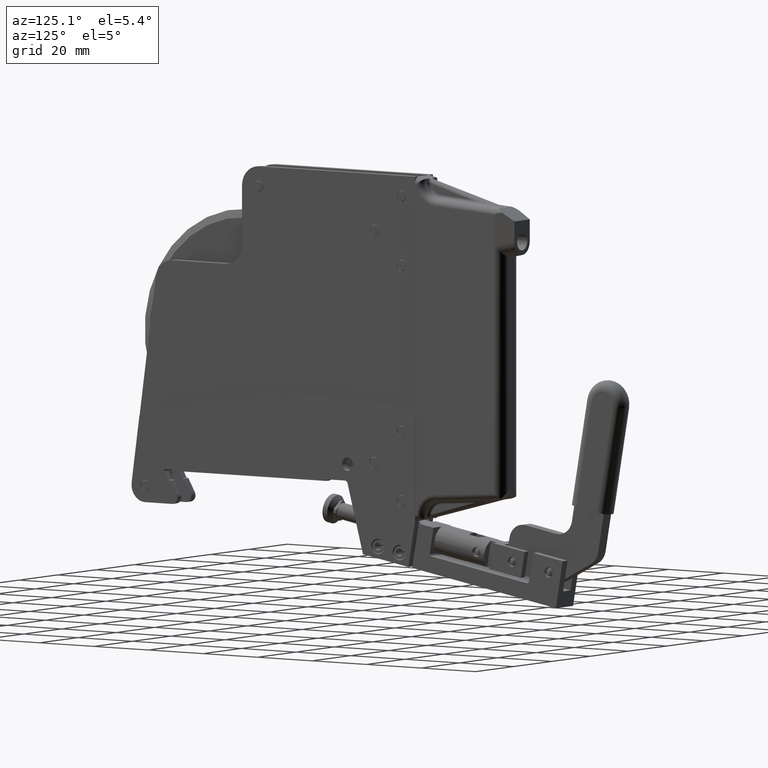
[diagram: clean part render]
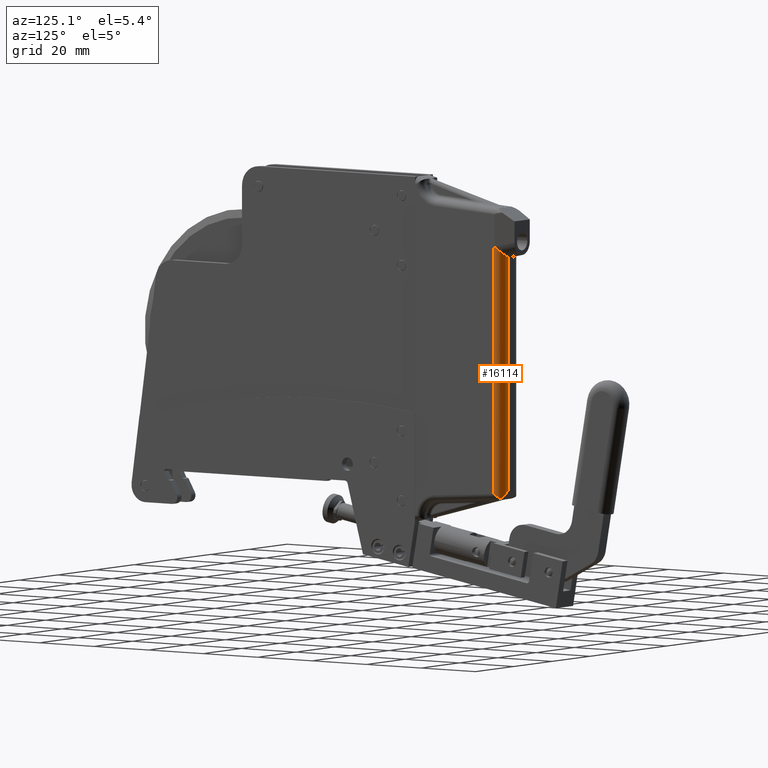
[diagram: same view with one face highlighted and labeled with its STEP entity id]
A machine part, auxiliary view. The second image highlights one B-rep face of the part: STEP entity #16114.
In plain terms, the highlighted cylindrical surface (edge-blend (fillet) strip) has radius 3 mm, axis along (0, 0, 1).
Its self-contained STEP definition (entity closure, byte-faithful):
#1889 = DIRECTION ( 'NONE',  ( 5.570303225098411801E-17, 1.225148454908620010E-16, 1.000000000000000000 ) ) ;
#2108 = CARTESIAN_POINT ( 'NONE',  ( 0.3701013619608116145, 2.420388976758461208, 1.272850159631258027 ) ) ;
#2231 = EDGE_CURVE ( 'NONE', #14597, #5334, #16804, .T. ) ;
#2302 = CARTESIAN_POINT ( 'NONE',  ( 0.2714393806282462407, 2.518246655274281931, 1.161888002753969085 ) ) ;
#3508 = VERTEX_POINT ( 'NONE', #29856 ) ;
#3959 = ORIENTED_EDGE ( 'NONE', *, *, #2231, .F. ) ;
#4880 = CARTESIAN_POINT ( 'NONE',  ( 0.3716535433070867755, 2.401185387117290571, -1.657239845452961102 ) ) ;
#5234 = VECTOR ( 'NONE', #17510, 39.37007874015748143 ) ;
#5334 = VERTEX_POINT ( 'NONE', #37471 ) ;
#5439 = CARTESIAN_POINT ( 'NONE',  ( 0.3678209431114168315, 2.431239934776605605, 1.263697560768792139 ) ) ;
#5889 = ORIENTED_EDGE ( 'NONE', *, *, #37145, .T. ) ;
#6402 = CARTESIAN_POINT ( 'NONE',  ( 0.2535433070866143779, 2.519295623337763246, -1.619041136939663561 ) ) ;
#7206 = VERTEX_POINT ( 'NONE', #30838 ) ;
#8216 = CARTESIAN_POINT ( 'NONE',  ( 0.3301889440454494062, 2.491384026079261904, 1.201225200173722252 ) ) ;
#8415 = CARTESIAN_POINT ( 'NONE',  ( 0.3505712549088514929, 2.470108574762409859, 1.225020368659028414 ) ) ;
#8523 = DIRECTION ( 'NONE',  ( 5.570303225098411801E-17, 1.225148454908620010E-16, 1.000000000000000000 ) ) ;
#10157 = CARTESIAN_POINT ( 'NONE',  ( 0.2535433070866144889, 2.519295623337763690, 1.155321704405330108 ) ) ;
#10215 = CARTESIAN_POINT ( 'NONE',  ( 0.3716535433070867755, 2.401185387117290571, -1.657239845452961102 ) ) ;
#11089 = FACE_OUTER_BOUND ( 'NONE', #36744, .T. ) ;
#11362 = CARTESIAN_POINT ( 'NONE',  ( 0.3686799268695289400, 2.427787242141226098, 1.266916617238273535 ) ) ;
#11398 = CARTESIAN_POINT ( 'NONE',  ( 0.3674331323723635245, 2.433171496643364407, -1.681077223645609076 ) ) ;
#11744 = CARTESIAN_POINT ( 'NONE',  ( 0.3711216599036045172, 2.412432854097110280, 1.274710118522544233 ) ) ;
#12388 = ORIENTED_EDGE ( 'NONE', *, *, #26643, .F. ) ;
#13936 = CARTESIAN_POINT ( 'NONE',  ( 0.3711222988017576219, 2.414105985418275591, -1.666911749336099424 ) ) ;
#14109 = CARTESIAN_POINT ( 'NONE',  ( 0.3109299921774595354, 2.504736657024238422, 1.184626628413938842 ) ) ;
#14324 = CARTESIAN_POINT ( 'NONE',  ( 0.3604054850315558944, 2.451954093334927975, -1.694743344692332565 ) ) ;
#14495 = CARTESIAN_POINT ( 'NONE',  ( 0.3357299238760466653, 2.486326963677681245, 1.207045974566942625 ) ) ;
#14597 = VERTEX_POINT ( 'NONE', #10215 ) ;
#14860 = CARTESIAN_POINT ( 'NONE',  ( 0.2898324438948471915, 2.519295623337763246, -1.655330273747896541 ) ) ;
#16114 = ADVANCED_FACE ( 'NONE', ( #11089 ), #35323, .T. ) ;
#16398 = AXIS2_PLACEMENT_3D ( 'NONE', #16928, #8523, #38450 ) ;
#16594 = LINE ( 'NONE', #28365, #5234 ) ;
#16715 = EDGE_CURVE ( 'NONE', #3508, #7206, #32693, .T. ) ;
#16804 = LINE ( 'NONE', #32464, #33653 ) ;
#16928 = CARTESIAN_POINT ( 'NONE',  ( 0.2535433070866143224, 2.401185387117290571, -1.619041136939664005 ) ) ;
#17186 = CARTESIAN_POINT ( 'NONE',  ( 0.2627009518636785335, 2.519295623337764134, 1.158330030240896313 ) ) ;
#17510 = DIRECTION ( 'NONE',  ( -5.570303225098411801E-17, -1.225148454908620010E-16, -1.000000000000000000 ) ) ;
#17578 = CARTESIAN_POINT ( 'NONE',  ( 0.3716535433070869421, 2.401185387117291015, 1.263844812348333013 ) ) ;
#19951 = CARTESIAN_POINT ( 'NONE',  ( 0.3697719517148596591, 2.422267324157338031, 1.271390478147904624 ) ) ;
#20158 = CARTESIAN_POINT ( 'NONE',  ( 0.3177175975001951258, 2.500643964350884207, 1.189949113653606227 ) ) ;
#20541 = CARTESIAN_POINT ( 'NONE',  ( 0.3716535433070868311, 2.402707972215232690, 1.265733812821923321 ) ) ;
#20569 = CARTESIAN_POINT ( 'NONE',  ( 0.3690117047614153156, 2.426852687162663447, -1.676400000661366185 ) ) ;
#22398 = B_SPLINE_CURVE_WITH_KNOTS ( 'NONE', 3,
 ( #22953, #29366, #37786, #14324, #30086, #11398, #20569, #13936, #25673, #4880 ),
 .UNSPECIFIED., .F., .F.,
 ( 4, 2, 2, 2, 4 ),
 ( 0.000000000000000000, 0.0006133193710210576004, 0.001226638742042099588, 0.001839958113063141793, 0.002453277484084183564 ),
 .UNSPECIFIED. ) ;
#22953 = CARTESIAN_POINT ( 'NONE',  ( 0.3453940064856747538, 2.475438177771644543, -1.710891836338724437 ) ) ;
#23698 = CARTESIAN_POINT ( 'NONE',  ( 0.3714946727970770413, 2.407524471319507420, 1.271168226853048200 ) ) ;
#25673 = CARTESIAN_POINT ( 'NONE',  ( 0.3716535433070867755, 2.407628881382704478, -1.662063207701348189 ) ) ;
#25840 = CARTESIAN_POINT ( 'NONE',  ( 0.3713985621546194715, 2.409232337543565805, 1.272974418372319727 ) ) ;
#26033 = CARTESIAN_POINT ( 'NONE',  ( 0.3709996028754865560, 2.413656248356350176, 1.275052815484063462 ) ) ;
#26220 = CARTESIAN_POINT ( 'NONE',  ( 0.2535433070866144889, 2.519295623337763690, 1.155321704405330108 ) ) ;
#26405 = CARTESIAN_POINT ( 'NONE',  ( 0.3707182318112400843, 2.416069634369511387, 1.274896260593666231 ) ) ;
#26643 = EDGE_CURVE ( 'NONE', #28492, #3508, #16594, .T. ) ;
#26799 = CARTESIAN_POINT ( 'NONE',  ( 0.3225799832081401308, 2.503659123754704563, -1.688077813061189758 ) ) ;
#28365 = CARTESIAN_POINT ( 'NONE',  ( 0.2535433070866144889, 2.519295623337763690, 1.147628887925968622 ) ) ;
#28492 = VERTEX_POINT ( 'NONE', #10157 ) ;
#28948 = CARTESIAN_POINT ( 'NONE',  ( 0.3581529594571971065, 2.457810951825903256, 1.237838339528115394 ) ) ;
#29125 = CARTESIAN_POINT ( 'NONE',  ( 0.2962034453879421880, 2.511621838188343059, 1.174697620109023344 ) ) ;
#29366 = CARTESIAN_POINT ( 'NONE',  ( 0.3499505932984082746, 2.469801680046323167, -1.707202286587894191 ) ) ;
#29787 = B_SPLINE_CURVE_WITH_KNOTS ( 'NONE', 3,
 ( #26220, #17186, #2302, #38525, #29125, #14109, #20158, #8216, #14495, #8415, #28948, #38145, #32654, #5439, #11362, #19951, #2108, #32262, #26405, #26033, #11744, #25840, #23698, #35610, #20541, #17578 ),
 .UNSPECIFIED., .F., .F.,
 ( 4, 2, 2, 2, 2, 2, 2, 2, 2, 2, 2, 2, 4 ),
 ( 0.000000000000000000, 0.0007224288865212876972, 0.001444857773042575394, 0.002167286659563861032, 0.002889715546085146886, 0.004334573319127711655, 0.004695787762388353714, 0.005057002205648996641, 0.005237609427279303793, 0.005327913038094466043, 0.005418216648909629160, 0.005598823870539926771, 0.005779431092170223515 ),
 .UNSPECIFIED. ) ;
#29856 = CARTESIAN_POINT ( 'NONE',  ( 0.2535433070866143779, 2.519295623337763246, -1.619041136939663561 ) ) ;
#30086 = CARTESIAN_POINT ( 'NONE',  ( 0.3631368502449289770, 2.445719181074677451, -1.690247135407881851 ) ) ;
#30838 = CARTESIAN_POINT ( 'NONE',  ( 0.3453940064856747538, 2.475438177771644543, -1.710891836338724437 ) ) ;
#32262 = CARTESIAN_POINT ( 'NONE',  ( 0.3705635230406311709, 2.417229996364880229, 1.274455385067010837 ) ) ;
#32464 = CARTESIAN_POINT ( 'NONE',  ( 0.3716535433070867755, 2.401185387117290571, -1.619041136939664005 ) ) ;
#32583 = ORIENTED_EDGE ( 'NONE', *, *, #16715, .F. ) ;
#32654 = CARTESIAN_POINT ( 'NONE',  ( 0.3658075374423530035, 2.438055381869892457, 1.257267418253399160 ) ) ;
#32693 =( BOUNDED_CURVE ( )  B_SPLINE_CURVE ( 3, ( #6402, #14860, #26799, #38721 ),
 .UNSPECIFIED., .F., .T. ) 
 B_SPLINE_CURVE_WITH_KNOTS ( ( 4, 4 ),
 ( 1.570796326794894560, 2.461746194299290647 ),
 .UNSPECIFIED. ) 
 CURVE ( )  GEOMETRIC_REPRESENTATION_ITEM ( )  RATIONAL_B_SPLINE_CURVE ( ( 1.000000000000000000, 0.9349374164201336157, 0.9349374164201336157, 1.000000000000000000 ) ) 
 REPRESENTATION_ITEM ( '' )  );
#33653 = VECTOR ( 'NONE', #1889, 39.37007874015748143 ) ;
#33676 = ORIENTED_EDGE ( 'NONE', *, *, #37845, .F. ) ;
#35323 = CYLINDRICAL_SURFACE ( 'NONE', #16398, 0.1181102362204724532 ) ;
#35610 = CARTESIAN_POINT ( 'NONE',  ( 0.3716250656764348292, 2.404252462242138844, 1.267601876908074132 ) ) ;
#36744 = EDGE_LOOP ( 'NONE', ( #32583, #12388, #5889, #3959, #33676 ) ) ;
#37145 = EDGE_CURVE ( 'NONE', #28492, #5334, #29787, .T. ) ;
#37471 = CARTESIAN_POINT ( 'NONE',  ( 0.3716535433070869421, 2.401185387117291015, 1.263844812348333013 ) ) ;
#37786 = CARTESIAN_POINT ( 'NONE',  ( 0.3538171190684119005, 2.463971924183673501, -1.703202660734205676 ) ) ;
#37845 = EDGE_CURVE ( 'NONE', #7206, #14597, #22398, .T. ) ;
#38145 = CARTESIAN_POINT ( 'NONE',  ( 0.3646557351317676887, 2.441391501228728167, 1.254024880868068292 ) ) ;
#38450 = DIRECTION ( 'NONE',  ( 1.000000000000000000, 0.000000000000000000, 0.000000000000000000 ) ) ;
#38525 = CARTESIAN_POINT ( 'NONE',  ( 0.2881659897554029182, 2.514432372929481740, 1.170047915673089856 ) ) ;
#38721 = CARTESIAN_POINT ( 'NONE',  ( 0.3453940064856747538, 2.475438177771644543, -1.710891836338724437 ) ) ;